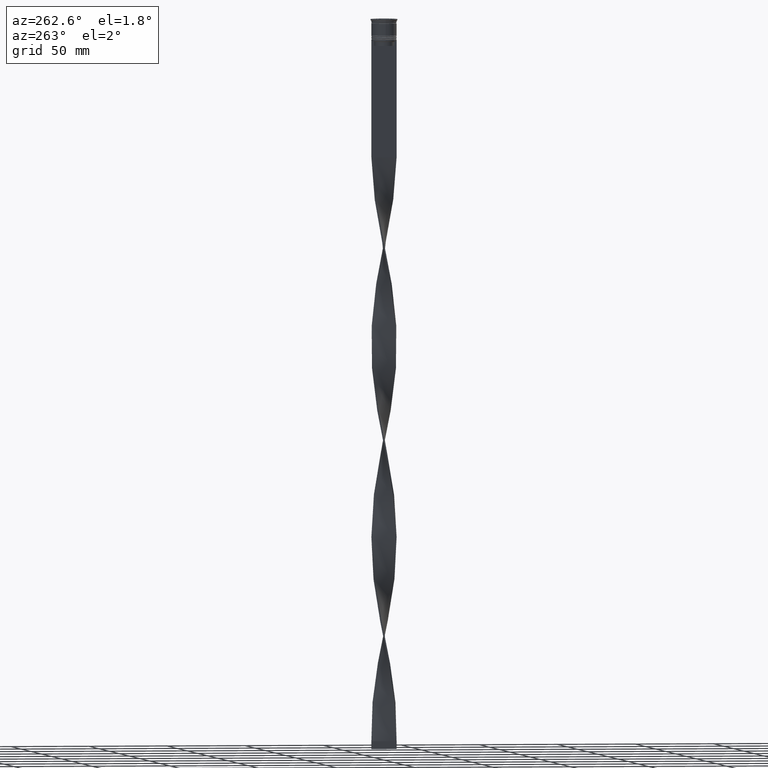
[diagram: clean part render]
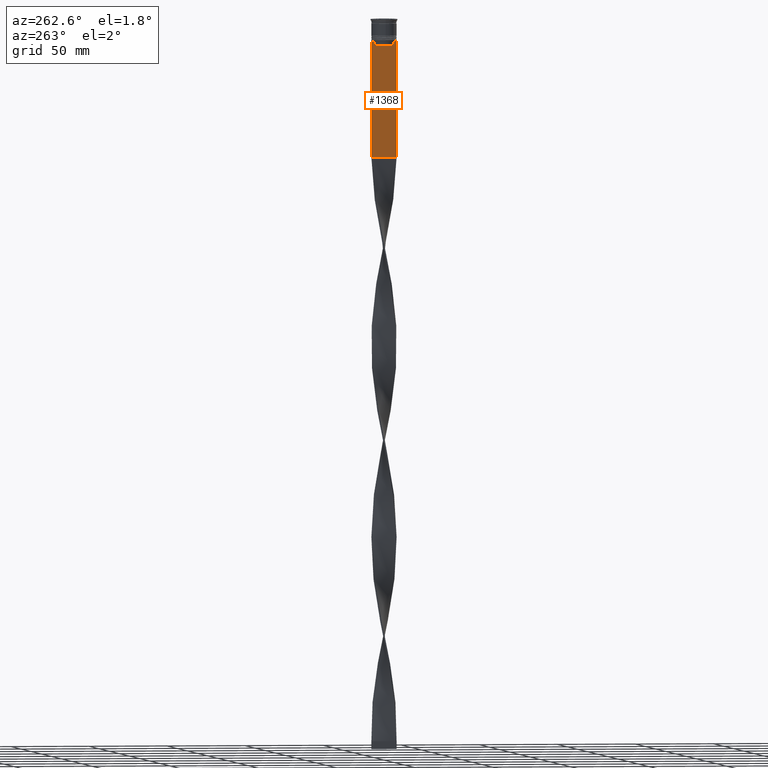
[diagram: same view with one face highlighted and labeled with its STEP entity id]
A machine part, auxiliary view. The second image highlights one B-rep face of the part: STEP entity #1368.
In plain terms, the highlighted planar face has unit normal (-1, 0, 0).
Its self-contained STEP definition (entity closure, byte-faithful):
#13 = CARTESIAN_POINT ( 'NONE',  ( -0.4999999999999998890, -6.881860213634098500, -14.00000000000000178 ) ) ;
#43 = CARTESIAN_POINT ( 'NONE',  ( -0.4999999999999998890, 6.380438856379708312, -14.50000000000000000 ) ) ;
#137 = DIRECTION ( 'NONE',  ( -1.000000000000000000, 0.000000000000000000, 0.000000000000000000 ) ) ;
#211 = CARTESIAN_POINT ( 'NONE',  ( -0.4999999999999998890, -8.000000000000003553, -14.00000000000000178 ) ) ;
#229 = CARTESIAN_POINT ( 'NONE',  ( -0.4999999999999998890, -6.380438856379708312, -14.50000000000000000 ) ) ;
#249 = VERTEX_POINT ( 'NONE', #43 ) ;
#250 = CARTESIAN_POINT ( 'NONE',  ( -0.4999999999999998890, -8.000000000000003553, 2.031219541881394530 ) ) ;
#257 = DIRECTION ( 'NONE',  ( 0.000000000000000000, 0.000000000000000000, -1.000000000000000000 ) ) ;
#311 = ORIENTED_EDGE ( 'NONE', *, *, #943, .F. ) ;
#313 = VECTOR ( 'NONE', #2589, 1000.000000000000000 ) ;
#319 = VECTOR ( 'NONE', #2538, 1000.000000000000000 ) ;
#320 = LINE ( 'NONE', #1324, #3938 ) ;
#360 = ORIENTED_EDGE ( 'NONE', *, *, #3322, .F. ) ;
#362 = LINE ( 'NONE', #1697, #2319 ) ;
#373 = CARTESIAN_POINT ( 'NONE',  ( -0.4999999999999998890, -6.380438856379708312, -17.00000000000000000 ) ) ;
#377 = EDGE_CURVE ( 'NONE', #609, #3747, #362, .T. ) ;
#609 = VERTEX_POINT ( 'NONE', #2484 ) ;
#624 = DIRECTION ( 'NONE',  ( 0.000000000000000000, -1.000000000000000000, 0.000000000000000000 ) ) ;
#663 = VECTOR ( 'NONE', #1652, 1000.000000000000000 ) ;
#721 = VERTEX_POINT ( 'NONE', #4145 ) ;
#766 = PLANE ( 'NONE',  #3944 ) ;
#809 = VERTEX_POINT ( 'NONE', #4191 ) ;
#853 = EDGE_LOOP ( 'NONE', ( #2124, #1806, #1839, #1187, #3196, #2021, #2828, #360, #2798, #1623, #3174, #311 ) ) ;
#881 = CARTESIAN_POINT ( 'NONE',  ( -0.4999999999999998890, 6.881860213634098500, -14.00000000000000178 ) ) ;
#913 = VERTEX_POINT ( 'NONE', #229 ) ;
#943 = EDGE_CURVE ( 'NONE', #249, #721, #3245, .T. ) ;
#986 = DIRECTION ( 'NONE',  ( -0.000000000000000000, -0.000000000000000000, 1.000000000000000000 ) ) ;
#1044 = B_SPLINE_CURVE_WITH_KNOTS ( 'NONE', 3,
 ( #2873, #1876, #2222, #4125 ),
 .UNSPECIFIED., .F., .F.,
 ( 4, 4 ),
 ( 0.01172465562756038263, 0.01243276816391822651 ),
 .UNSPECIFIED. ) ;
#1114 = CARTESIAN_POINT ( 'NONE',  ( -0.4999999999999998890, 7.999999999999996447, -14.00000000000000178 ) ) ;
#1116 = EDGE_CURVE ( 'NONE', #2453, #913, #320, .T. ) ;
#1143 = EDGE_CURVE ( 'NONE', #1231, #1755, #3993, .T. ) ;
#1151 = VECTOR ( 'NONE', #3659, 1000.000000000000000 ) ;
#1187 = ORIENTED_EDGE ( 'NONE', *, *, #1799, .T. ) ;
#1231 = VERTEX_POINT ( 'NONE', #1114 ) ;
#1254 = LINE ( 'NONE', #4295, #2685 ) ;
#1274 = DIRECTION ( 'NONE',  ( 0.000000000000000000, 0.000000000000000000, -1.000000000000000000 ) ) ;
#1323 = CARTESIAN_POINT ( 'NONE',  ( -0.4999999999999998890, -8.000000000000003553, -88.00000000000000000 ) ) ;
#1324 = CARTESIAN_POINT ( 'NONE',  ( -0.4999999999999998890, -6.380438856379708312, 0.000000000000000000 ) ) ;
#1362 = B_SPLINE_CURVE_WITH_KNOTS ( 'NONE', 3,
 ( #2080, #4134, #3121, #2144 ),
 .UNSPECIFIED., .F., .F.,
 ( 4, 4 ),
 ( 0.02996184199614749730, 0.03067452609193703841 ),
 .UNSPECIFIED. ) ;
#1368 = ADVANCED_FACE ( 'NONE', ( #3764 ), #766, .T. ) ;
#1623 = ORIENTED_EDGE ( 'NONE', *, *, #1116, .F. ) ;
#1624 = LINE ( 'NONE', #250, #2342 ) ;
#1652 = DIRECTION ( 'NONE',  ( 0.000000000000000000, -1.000000000000000000, 0.000000000000000000 ) ) ;
#1697 = CARTESIAN_POINT ( 'NONE',  ( -0.4999999999999998890, -8.000000000000003553, -14.00000000000000178 ) ) ;
#1755 = VERTEX_POINT ( 'NONE', #2053 ) ;
#1799 = EDGE_CURVE ( 'NONE', #1231, #809, #1831, .T. ) ;
#1806 = ORIENTED_EDGE ( 'NONE', *, *, #3362, .F. ) ;
#1831 = LINE ( 'NONE', #3751, #313 ) ;
#1839 = ORIENTED_EDGE ( 'NONE', *, *, #1143, .F. ) ;
#1876 = CARTESIAN_POINT ( 'NONE',  ( -0.4999999999999998890, 6.714736947114692711, -14.16668390704818847 ) ) ;
#1941 = DIRECTION ( 'NONE',  ( 0.000000000000000000, -1.000000000000000000, 0.000000000000000000 ) ) ;
#1960 = CARTESIAN_POINT ( 'NONE',  ( -0.4999999999999998890, -8.000000000000003553, -14.00000000000000178 ) ) ;
#1979 = LINE ( 'NONE', #1323, #1151 ) ;
#2021 = ORIENTED_EDGE ( 'NONE', *, *, #3342, .F. ) ;
#2053 = CARTESIAN_POINT ( 'NONE',  ( -0.4999999999999998890, 7.884161337770806632, -14.00000000000000178 ) ) ;
#2080 = CARTESIAN_POINT ( 'NONE',  ( -0.4999999999999998890, -6.380438856379708312, -14.50000000000000000 ) ) ;
#2124 = ORIENTED_EDGE ( 'NONE', *, *, #2752, .F. ) ;
#2144 = CARTESIAN_POINT ( 'NONE',  ( -0.4999999999999998890, -6.881860213634098500, -14.00000000000000178 ) ) ;
#2215 = DIRECTION ( 'NONE',  ( 0.000000000000000000, -1.000000000000000000, 0.000000000000000000 ) ) ;
#2222 = CARTESIAN_POINT ( 'NONE',  ( -0.4999999999999998890, 6.547597841304911626, -14.33335192459222718 ) ) ;
#2236 = CARTESIAN_POINT ( 'NONE',  ( -0.4999999999999998890, -8.000000000000003553, -14.00000000000000178 ) ) ;
#2276 = VERTEX_POINT ( 'NONE', #881 ) ;
#2319 = VECTOR ( 'NONE', #624, 1000.000000000000000 ) ;
#2342 = VECTOR ( 'NONE', #1274, 1000.000000000000000 ) ;
#2391 = VECTOR ( 'NONE', #257, 1000.000000000000000 ) ;
#2453 = VERTEX_POINT ( 'NONE', #373 ) ;
#2484 = CARTESIAN_POINT ( 'NONE',  ( -0.4999999999999998890, -7.884161337770806632, -14.00000000000000178 ) ) ;
#2492 = EDGE_CURVE ( 'NONE', #913, #4046, #1362, .T. ) ;
#2538 = DIRECTION ( 'NONE',  ( 0.000000000000000000, -1.000000000000000000, 0.000000000000000000 ) ) ;
#2577 = VERTEX_POINT ( 'NONE', #3341 ) ;
#2584 = LINE ( 'NONE', #2236, #319 ) ;
#2589 = DIRECTION ( 'NONE',  ( 0.000000000000000000, 0.000000000000000000, -1.000000000000000000 ) ) ;
#2685 = VECTOR ( 'NONE', #2215, 1000.000000000000000 ) ;
#2752 = EDGE_CURVE ( 'NONE', #2276, #249, #1044, .T. ) ;
#2798 = ORIENTED_EDGE ( 'NONE', *, *, #2492, .F. ) ;
#2828 = ORIENTED_EDGE ( 'NONE', *, *, #377, .F. ) ;
#2873 = CARTESIAN_POINT ( 'NONE',  ( -0.4999999999999998890, 6.881860213634098500, -14.00000000000000178 ) ) ;
#3085 = VECTOR ( 'NONE', #1941, 1000.000000000000000 ) ;
#3121 = CARTESIAN_POINT ( 'NONE',  ( -0.4999999999999998890, -6.714736947305992132, -14.16668390685738999 ) ) ;
#3174 = ORIENTED_EDGE ( 'NONE', *, *, #4097, .F. ) ;
#3196 = ORIENTED_EDGE ( 'NONE', *, *, #4234, .F. ) ;
#3245 = LINE ( 'NONE', #3840, #2391 ) ;
#3322 = EDGE_CURVE ( 'NONE', #4046, #609, #1254, .T. ) ;
#3341 = CARTESIAN_POINT ( 'NONE',  ( -0.4999999999999998890, -8.000000000000003553, -88.00000000000000000 ) ) ;
#3342 = EDGE_CURVE ( 'NONE', #3747, #2577, #1624, .T. ) ;
#3362 = EDGE_CURVE ( 'NONE', #1755, #2276, #2584, .T. ) ;
#3458 = CARTESIAN_POINT ( 'NONE',  ( -0.4999999999999998890, -8.000000000000003553, 2.031219541881394530 ) ) ;
#3598 = CARTESIAN_POINT ( 'NONE',  ( -0.4999999999999998890, 6.399999999999999467, -17.00000000000000000 ) ) ;
#3659 = DIRECTION ( 'NONE',  ( 0.000000000000000000, 1.000000000000000000, 0.000000000000000000 ) ) ;
#3722 = DIRECTION ( 'NONE',  ( 0.000000000000000000, 0.000000000000000000, 1.000000000000000000 ) ) ;
#3747 = VERTEX_POINT ( 'NONE', #211 ) ;
#3751 = CARTESIAN_POINT ( 'NONE',  ( -0.4999999999999998890, 7.999999999999996447, 2.031219541881394530 ) ) ;
#3764 = FACE_OUTER_BOUND ( 'NONE', #853, .T. ) ;
#3840 = CARTESIAN_POINT ( 'NONE',  ( -0.4999999999999998890, 6.380438856379708312, 0.000000000000000000 ) ) ;
#3938 = VECTOR ( 'NONE', #986, 1000.000000000000000 ) ;
#3944 = AXIS2_PLACEMENT_3D ( 'NONE', #3458, #137, #3722 ) ;
#3993 = LINE ( 'NONE', #1960, #3085 ) ;
#4046 = VERTEX_POINT ( 'NONE', #13 ) ;
#4097 = EDGE_CURVE ( 'NONE', #721, #2453, #4276, .T. ) ;
#4125 = CARTESIAN_POINT ( 'NONE',  ( -0.4999999999999998890, 6.380438856379708312, -14.50000000000000000 ) ) ;
#4134 = CARTESIAN_POINT ( 'NONE',  ( -0.4999999999999998890, -6.547597841511246131, -14.33335192438652328 ) ) ;
#4145 = CARTESIAN_POINT ( 'NONE',  ( -0.4999999999999998890, 6.380438856379708312, -17.00000000000000000 ) ) ;
#4191 = CARTESIAN_POINT ( 'NONE',  ( -0.4999999999999998890, 7.999999999999996447, -88.00000000000000000 ) ) ;
#4234 = EDGE_CURVE ( 'NONE', #2577, #809, #1979, .T. ) ;
#4276 = LINE ( 'NONE', #3598, #663 ) ;
#4295 = CARTESIAN_POINT ( 'NONE',  ( -0.4999999999999998890, -8.000000000000003553, -14.00000000000000178 ) ) ;